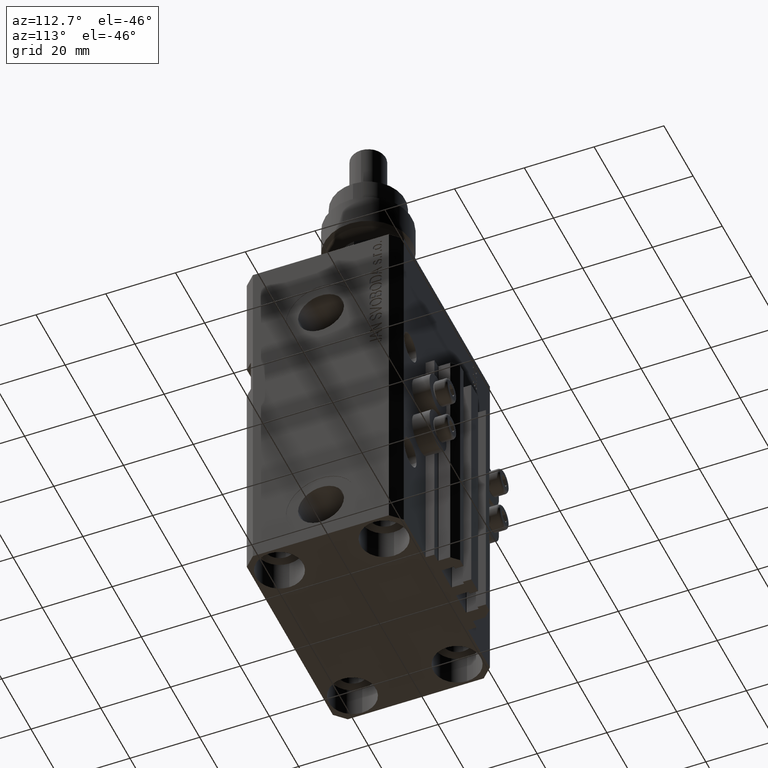
[diagram: clean part render]
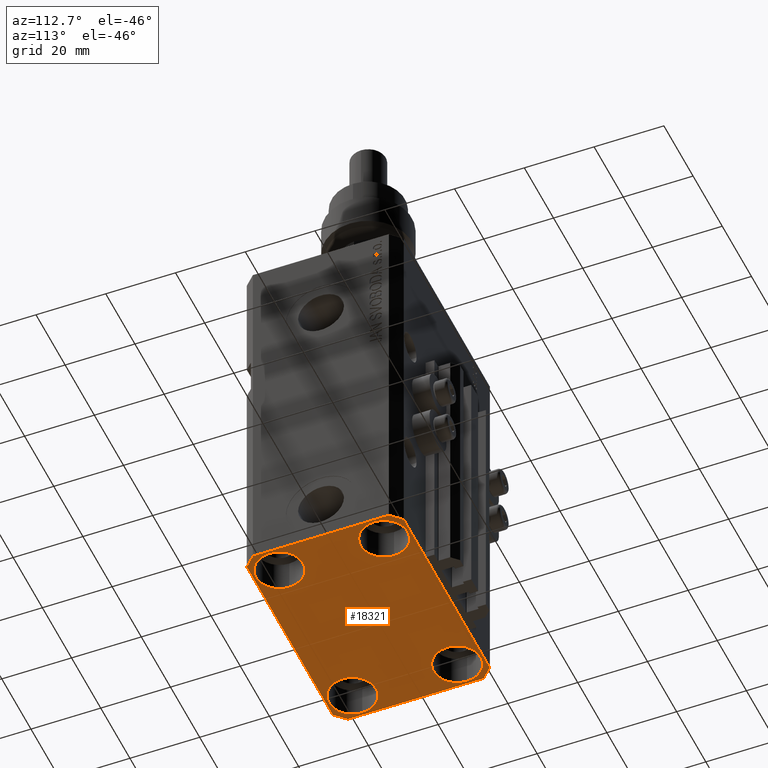
[diagram: same view with one face highlighted and labeled with its STEP entity id]
A machine part, auxiliary view. The second image highlights one B-rep face of the part: STEP entity #18321.
In plain terms, the highlighted planar face has unit normal (0, 0, 1).
Its self-contained STEP definition (entity closure, byte-faithful):
#86 = ORIENTED_EDGE ( 'NONE', *, *, #16906, .T. ) ;
#361 = CARTESIAN_POINT ( 'NONE',  ( -18.24999999997747224, 15.00000000000000000, -107.0000000000000000 ) ) ;
#462 = VERTEX_POINT ( 'NONE', #25077 ) ;
#469 = DIRECTION ( 'NONE',  ( -0.000000000000000000, -0.000000000000000000, 1.000000000000000000 ) ) ;
#1148 = ORIENTED_EDGE ( 'NONE', *, *, #20100, .T. ) ;
#1448 = EDGE_CURVE ( 'NONE', #35367, #25887, #33090, .T. ) ;
#1491 = CARTESIAN_POINT ( 'NONE',  ( -31.75000000004154899, -15.00000000000000000, -107.0000000000000000 ) ) ;
#1682 = CARTESIAN_POINT ( 'NONE',  ( -31.75000000002253842, 15.00000000000000000, -107.0000000000000000 ) ) ;
#2572 = EDGE_CURVE ( 'NONE', #25639, #46862, #10453, .T. ) ;
#2901 = VERTEX_POINT ( 'NONE', #11028 ) ;
#2902 = CARTESIAN_POINT ( 'NONE',  ( -32.49999999999650413, 19.49999999999949907, -107.0000000000000000 ) ) ;
#3082 = DIRECTION ( 'NONE',  ( 1.000000000000000000, 0.000000000000000000, 0.000000000000000000 ) ) ;
#3964 = VERTEX_POINT ( 'NONE', #1491 ) ;
#3987 = LINE ( 'NONE', #35965, #7498 ) ;
#4237 = CIRCLE ( 'NONE', #13280, 6.749999999977465137 ) ;
#4432 = VECTOR ( 'NONE', #44593, 1000.000000000000000 ) ;
#5635 = CARTESIAN_POINT ( 'NONE',  ( -25.00000000000000355, 15.00000000000000000, -107.0000000000000000 ) ) ;
#6147 = CARTESIAN_POINT ( 'NONE',  ( 29.49999999999650413, -22.49999999999949196, -107.0000000000000000 ) ) ;
#6322 = EDGE_CURVE ( 'NONE', #7246, #3964, #44202, .T. ) ;
#6439 = LINE ( 'NONE', #14187, #33613 ) ;
#6440 = CARTESIAN_POINT ( 'NONE',  ( -25.00000000000000355, 15.00000000000000000, -107.0000000000000000 ) ) ;
#6620 = ORIENTED_EDGE ( 'NONE', *, *, #6322, .T. ) ;
#7246 = VERTEX_POINT ( 'NONE', #47952 ) ;
#7498 = VECTOR ( 'NONE', #16358, 1000.000000000000114 ) ;
#7559 = CIRCLE ( 'NONE', #21546, 6.749999999958452790 ) ;
#7816 = EDGE_LOOP ( 'NONE', ( #1148, #39702 ) ) ;
#8320 = AXIS2_PLACEMENT_3D ( 'NONE', #5635, #40230, #32501 ) ;
#8445 = LINE ( 'NONE', #44045, #13345 ) ;
#8539 = CARTESIAN_POINT ( 'NONE',  ( 24.99999999999999645, 15.00000000000000888, -107.0000000000000000 ) ) ;
#8694 = FACE_BOUND ( 'NONE', #40554, .T. ) ;
#8847 = DIRECTION ( 'NONE',  ( 1.000000000000000000, 0.000000000000000000, 0.000000000000000000 ) ) ;
#9563 = VECTOR ( 'NONE', #36698, 1000.000000000000000 ) ;
#9917 = EDGE_CURVE ( 'NONE', #28506, #47852, #6439, .T. ) ;
#9963 = CIRCLE ( 'NONE', #8320, 6.750000000022533087 ) ;
#10453 = CIRCLE ( 'NONE', #16208, 6.750000000022533087 ) ;
#10569 = DIRECTION ( 'NONE',  ( -0.000000000000000000, -0.000000000000000000, 1.000000000000000000 ) ) ;
#11028 = CARTESIAN_POINT ( 'NONE',  ( 31.74999999997746869, -15.00000000000000000, -107.0000000000000000 ) ) ;
#11899 = ORIENTED_EDGE ( 'NONE', *, *, #20738, .F. ) ;
#11978 = CARTESIAN_POINT ( 'NONE',  ( -29.49999999999650413, 22.49999999999949907, -107.0000000000000000 ) ) ;
#12342 = ORIENTED_EDGE ( 'NONE', *, *, #9917, .F. ) ;
#12473 = CARTESIAN_POINT ( 'NONE',  ( 25.00000000000000355, -15.00000000000000000, -107.0000000000000000 ) ) ;
#12869 = CARTESIAN_POINT ( 'NONE',  ( 32.49999999999651124, -19.49999999999949196, -107.0000000000000000 ) ) ;
#12907 = DIRECTION ( 'NONE',  ( -0.000000000000000000, -0.000000000000000000, 1.000000000000000000 ) ) ;
#13280 = AXIS2_PLACEMENT_3D ( 'NONE', #12473, #40324, #8847 ) ;
#13345 = VECTOR ( 'NONE', #48683, 1000.000000000000000 ) ;
#14027 = VERTEX_POINT ( 'NONE', #39290 ) ;
#14187 = CARTESIAN_POINT ( 'NONE',  ( -29.49999999999650413, 22.49999999999949907, -107.0000000000000000 ) ) ;
#14940 = VECTOR ( 'NONE', #21891, 1000.000000000000000 ) ;
#16208 = AXIS2_PLACEMENT_3D ( 'NONE', #6440, #10569, #3082 ) ;
#16358 = DIRECTION ( 'NONE',  ( 0.7071067811865474617, -0.7071067811865474617, 0.000000000000000000 ) ) ;
#16692 = FACE_OUTER_BOUND ( 'NONE', #27781, .T. ) ;
#16734 = CARTESIAN_POINT ( 'NONE',  ( -32.49999999999650413, 19.49999999999949907, -107.0000000000000000 ) ) ;
#16906 = EDGE_CURVE ( 'NONE', #46862, #25639, #9963, .T. ) ;
#17023 = EDGE_CURVE ( 'NONE', #25887, #22296, #18535, .T. ) ;
#17057 = EDGE_CURVE ( 'NONE', #3964, #7246, #29791, .T. ) ;
#17166 = ORIENTED_EDGE ( 'NONE', *, *, #17023, .F. ) ;
#17496 = VERTEX_POINT ( 'NONE', #41942 ) ;
#18321 = ADVANCED_FACE ( 'NONE', ( #20309, #44299, #28317, #8694, #16692 ), #48434, .F. ) ;
#18420 = VECTOR ( 'NONE', #34692, 1000.000000000000000 ) ;
#18535 = LINE ( 'NONE', #6147, #14940 ) ;
#18790 = DIRECTION ( 'NONE',  ( -0.000000000000000000, -0.000000000000000000, 1.000000000000000000 ) ) ;
#19111 = CARTESIAN_POINT ( 'NONE',  ( 31.74999999995845101, 15.00000000000000888, -107.0000000000000000 ) ) ;
#19874 = AXIS2_PLACEMENT_3D ( 'NONE', #29661, #51023, #33523 ) ;
#20100 = EDGE_CURVE ( 'NONE', #28901, #2901, #4237, .T. ) ;
#20296 = DIRECTION ( 'NONE',  ( -1.000000000000000000, -2.352167425053553784E-16, 0.000000000000000000 ) ) ;
#20309 = FACE_BOUND ( 'NONE', #31629, .T. ) ;
#20738 = EDGE_CURVE ( 'NONE', #17496, #35367, #3987, .T. ) ;
#20762 = CARTESIAN_POINT ( 'NONE',  ( 29.49999999999650413, -22.49999999999949196, -107.0000000000000000 ) ) ;
#21546 = AXIS2_PLACEMENT_3D ( 'NONE', #8539, #12907, #44385 ) ;
#21813 = EDGE_CURVE ( 'NONE', #14027, #28506, #32666, .T. ) ;
#21891 = DIRECTION ( 'NONE',  ( 0.7071067811865483499, 0.7071067811865466846, 0.000000000000000000 ) ) ;
#22296 = VERTEX_POINT ( 'NONE', #12869 ) ;
#22301 = ORIENTED_EDGE ( 'NONE', *, *, #48769, .F. ) ;
#22675 = EDGE_CURVE ( 'NONE', #22296, #27885, #8445, .T. ) ;
#22684 = ORIENTED_EDGE ( 'NONE', *, *, #17057, .T. ) ;
#23034 = AXIS2_PLACEMENT_3D ( 'NONE', #36312, #469, #32203 ) ;
#25077 = CARTESIAN_POINT ( 'NONE',  ( 18.25000000004154543, 15.00000000000000888, -107.0000000000000000 ) ) ;
#25255 = AXIS2_PLACEMENT_3D ( 'NONE', #49975, #27501, #39107 ) ;
#25639 = VERTEX_POINT ( 'NONE', #1682 ) ;
#25887 = VERTEX_POINT ( 'NONE', #20762 ) ;
#26495 = ORIENTED_EDGE ( 'NONE', *, *, #2572, .T. ) ;
#27501 = DIRECTION ( 'NONE',  ( -0.000000000000000000, -0.000000000000000000, 1.000000000000000000 ) ) ;
#27781 = EDGE_LOOP ( 'NONE', ( #49254, #22301, #40895, #17166, #46540, #11899, #27825, #12342 ) ) ;
#27825 = ORIENTED_EDGE ( 'NONE', *, *, #48309, .F. ) ;
#27885 = VERTEX_POINT ( 'NONE', #29097 ) ;
#28215 = VECTOR ( 'NONE', #20296, 1000.000000000000000 ) ;
#28317 = FACE_BOUND ( 'NONE', #34809, .T. ) ;
#28435 = CARTESIAN_POINT ( 'NONE',  ( 18.25000000002253842, -15.00000000000000000, -107.0000000000000000 ) ) ;
#28506 = VERTEX_POINT ( 'NONE', #11978 ) ;
#28562 = DIRECTION ( 'NONE',  ( 1.000000000000000000, 0.000000000000000000, -0.000000000000000000 ) ) ;
#28901 = VERTEX_POINT ( 'NONE', #28435 ) ;
#29097 = CARTESIAN_POINT ( 'NONE',  ( 32.49999999999702993, 19.49999999999945999, -107.0000000000000000 ) ) ;
#29661 = CARTESIAN_POINT ( 'NONE',  ( 25.00000000000000355, -15.00000000000000000, -107.0000000000000000 ) ) ;
#29791 = CIRCLE ( 'NONE', #33062, 6.750000000041541881 ) ;
#30909 = ORIENTED_EDGE ( 'NONE', *, *, #43801, .T. ) ;
#31237 = EDGE_CURVE ( 'NONE', #462, #34641, #36741, .T. ) ;
#31629 = EDGE_LOOP ( 'NONE', ( #22684, #6620 ) ) ;
#32203 = DIRECTION ( 'NONE',  ( 1.000000000000000000, 0.000000000000000000, 0.000000000000000000 ) ) ;
#32435 = CARTESIAN_POINT ( 'NONE',  ( 0.000000000000000000, 0.000000000000000000, -107.0000000000000000 ) ) ;
#32501 = DIRECTION ( 'NONE',  ( 1.000000000000000000, 0.000000000000000000, 0.000000000000000000 ) ) ;
#32666 = LINE ( 'NONE', #40156, #28215 ) ;
#33062 = AXIS2_PLACEMENT_3D ( 'NONE', #46149, #18790, #42273 ) ;
#33090 = LINE ( 'NONE', #33591, #9563 ) ;
#33523 = DIRECTION ( 'NONE',  ( 1.000000000000000000, 0.000000000000000000, 0.000000000000000000 ) ) ;
#33591 = CARTESIAN_POINT ( 'NONE',  ( -29.49999999999650413, -22.49999999999949907, -107.0000000000000000 ) ) ;
#33613 = VECTOR ( 'NONE', #41278, 1000.000000000000114 ) ;
#34209 = CARTESIAN_POINT ( 'NONE',  ( -29.49999999999650413, -22.49999999999949907, -107.0000000000000000 ) ) ;
#34641 = VERTEX_POINT ( 'NONE', #19111 ) ;
#34692 = DIRECTION ( 'NONE',  ( -0.7071067811865352493, 0.7071067811865597852, 0.000000000000000000 ) ) ;
#34809 = EDGE_LOOP ( 'NONE', ( #43106, #30909 ) ) ;
#35367 = VERTEX_POINT ( 'NONE', #34209 ) ;
#35965 = CARTESIAN_POINT ( 'NONE',  ( -32.49999999999650413, -19.49999999999949907, -107.0000000000000000 ) ) ;
#36312 = CARTESIAN_POINT ( 'NONE',  ( 24.99999999999999645, 15.00000000000000888, -107.0000000000000000 ) ) ;
#36698 = DIRECTION ( 'NONE',  ( 1.000000000000000000, 1.176083712526788232E-16, 0.000000000000000000 ) ) ;
#36741 = CIRCLE ( 'NONE', #23034, 6.749999999958452790 ) ;
#37912 = AXIS2_PLACEMENT_3D ( 'NONE', #32435, #48187, #28562 ) ;
#39107 = DIRECTION ( 'NONE',  ( 1.000000000000000000, 0.000000000000000000, 0.000000000000000000 ) ) ;
#39290 = CARTESIAN_POINT ( 'NONE',  ( 29.49999999999707967, 22.49999999999951328, -107.0000000000000000 ) ) ;
#39332 = CARTESIAN_POINT ( 'NONE',  ( 32.49999999999702993, 19.49999999999945999, -107.0000000000000000 ) ) ;
#39360 = EDGE_CURVE ( 'NONE', #2901, #28901, #41251, .T. ) ;
#39702 = ORIENTED_EDGE ( 'NONE', *, *, #39360, .T. ) ;
#40156 = CARTESIAN_POINT ( 'NONE',  ( 29.49999999999707967, 22.49999999999951328, -107.0000000000000000 ) ) ;
#40230 = DIRECTION ( 'NONE',  ( -0.000000000000000000, -0.000000000000000000, 1.000000000000000000 ) ) ;
#40324 = DIRECTION ( 'NONE',  ( -0.000000000000000000, -0.000000000000000000, 1.000000000000000000 ) ) ;
#40554 = EDGE_LOOP ( 'NONE', ( #26495, #86 ) ) ;
#40895 = ORIENTED_EDGE ( 'NONE', *, *, #22675, .F. ) ;
#41251 = CIRCLE ( 'NONE', #19874, 6.749999999977465137 ) ;
#41278 = DIRECTION ( 'NONE',  ( -0.7071067811865474617, -0.7071067811865474617, 0.000000000000000000 ) ) ;
#41942 = CARTESIAN_POINT ( 'NONE',  ( -32.49999999999650413, -19.49999999999949907, -107.0000000000000000 ) ) ;
#42273 = DIRECTION ( 'NONE',  ( 1.000000000000000000, 0.000000000000000000, 0.000000000000000000 ) ) ;
#43106 = ORIENTED_EDGE ( 'NONE', *, *, #31237, .T. ) ;
#43801 = EDGE_CURVE ( 'NONE', #34641, #462, #7559, .T. ) ;
#44045 = CARTESIAN_POINT ( 'NONE',  ( 32.49999999999651124, -19.49999999999949196, -107.0000000000000000 ) ) ;
#44202 = CIRCLE ( 'NONE', #25255, 6.750000000041541881 ) ;
#44299 = FACE_BOUND ( 'NONE', #7816, .T. ) ;
#44385 = DIRECTION ( 'NONE',  ( 1.000000000000000000, 0.000000000000000000, 0.000000000000000000 ) ) ;
#44593 = DIRECTION ( 'NONE',  ( 0.000000000000000000, -1.000000000000000000, 0.000000000000000000 ) ) ;
#45104 = LINE ( 'NONE', #16734, #4432 ) ;
#46149 = CARTESIAN_POINT ( 'NONE',  ( -25.00000000000000355, -15.00000000000000000, -107.0000000000000000 ) ) ;
#46540 = ORIENTED_EDGE ( 'NONE', *, *, #1448, .F. ) ;
#46862 = VERTEX_POINT ( 'NONE', #361 ) ;
#47354 = LINE ( 'NONE', #39332, #18420 ) ;
#47852 = VERTEX_POINT ( 'NONE', #2902 ) ;
#47952 = CARTESIAN_POINT ( 'NONE',  ( -18.24999999995845812, -15.00000000000000000, -107.0000000000000000 ) ) ;
#48187 = DIRECTION ( 'NONE',  ( 0.000000000000000000, 0.000000000000000000, 1.000000000000000000 ) ) ;
#48309 = EDGE_CURVE ( 'NONE', #47852, #17496, #45104, .T. ) ;
#48434 = PLANE ( 'NONE',  #37912 ) ;
#48683 = DIRECTION ( 'NONE',  ( 1.334402673828349134E-14, 1.000000000000000000, 0.000000000000000000 ) ) ;
#48769 = EDGE_CURVE ( 'NONE', #27885, #14027, #47354, .T. ) ;
#49254 = ORIENTED_EDGE ( 'NONE', *, *, #21813, .F. ) ;
#49975 = CARTESIAN_POINT ( 'NONE',  ( -25.00000000000000355, -15.00000000000000000, -107.0000000000000000 ) ) ;
#51023 = DIRECTION ( 'NONE',  ( -0.000000000000000000, -0.000000000000000000, 1.000000000000000000 ) ) ;